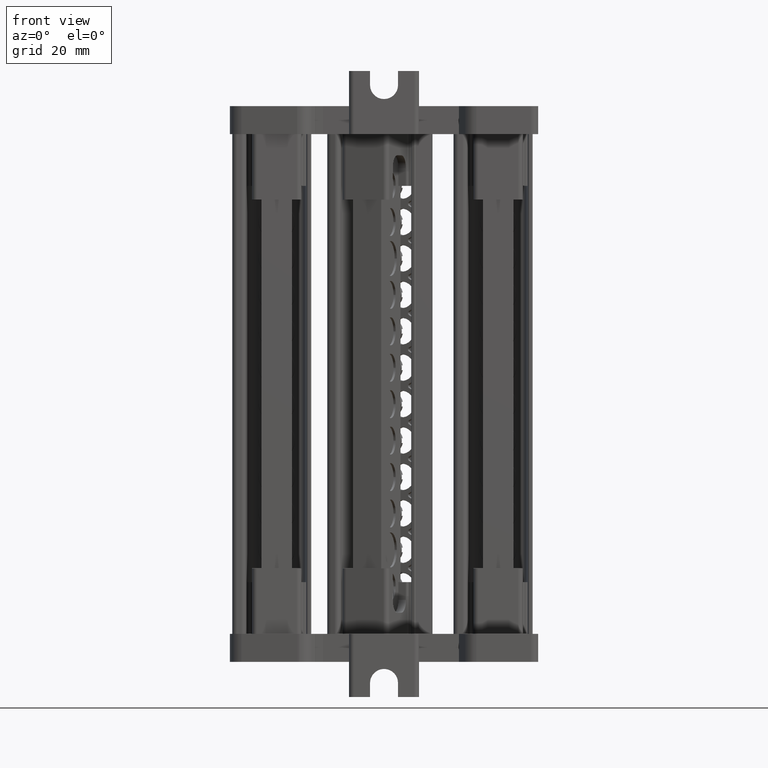
[diagram: clean part render]
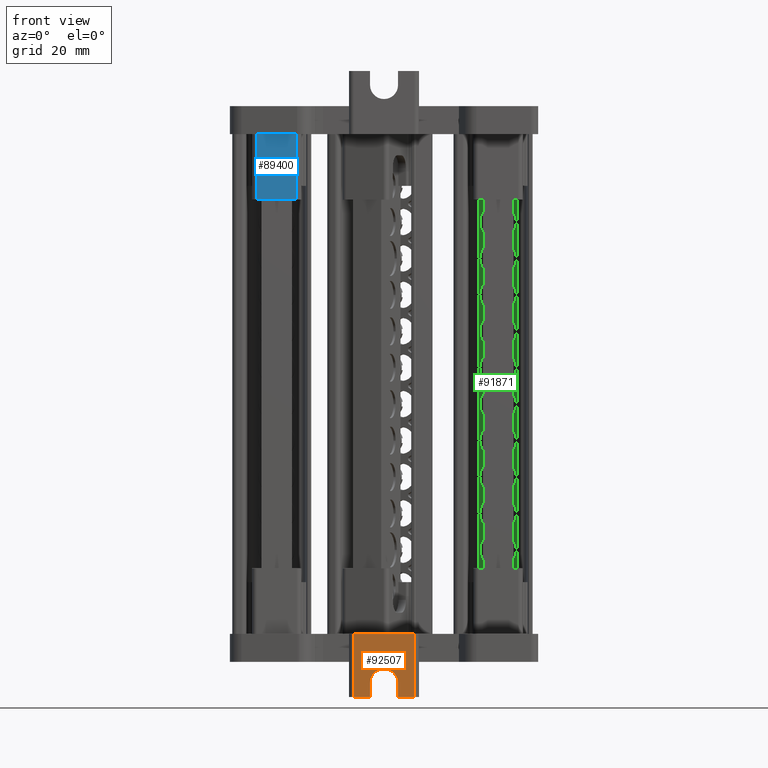
[diagram: same view with three faces highlighted in distinct colors, each labeled with its STEP entity id]
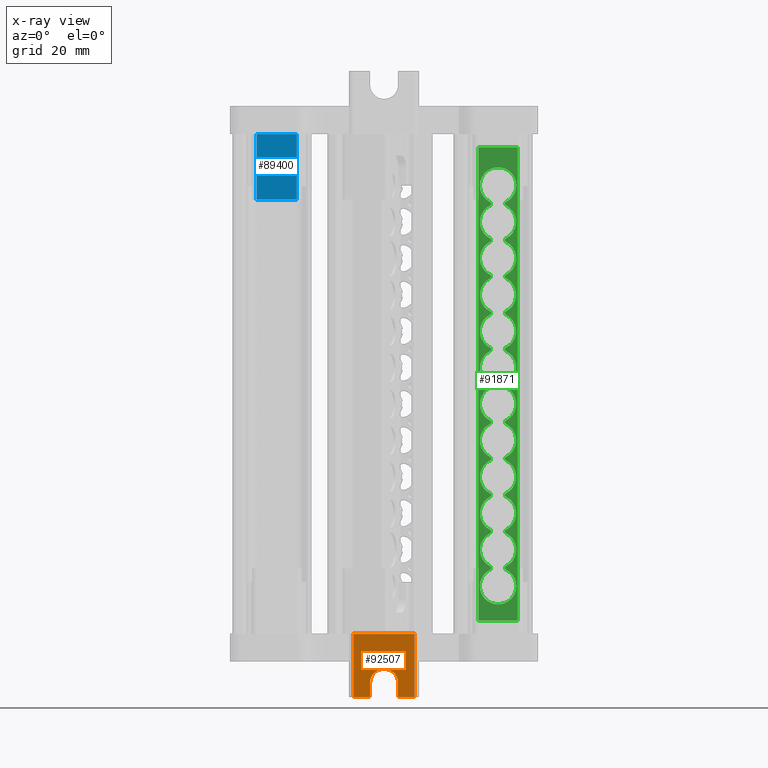
[diagram: x-ray of the same camera — body ghosted, the three highlighted faces saturated]
A machine part, front view with three faces highlighted in distinct colors.
The next image is the same camera in x-ray (body ghosted, the three faces saturated) — at least one of them is partly hidden behind the body in this view.
Their STEP definitions:

[orange] entity #92507 — the highlighted planar face has unit normal (0, -1, -0).
#1640 = ORIENTED_EDGE ( 'NONE', *, *, #4927, .T. ) ;
#1646 = ORIENTED_EDGE ( 'NONE', *, *, #11533, .F. ) ;
#1656 = ORIENTED_EDGE ( 'NONE', *, *, #11529, .F. ) ;
#1691 = ORIENTED_EDGE ( 'NONE', *, *, #2683, .T. ) ;
#1696 = ORIENTED_EDGE ( 'NONE', *, *, #11507, .T. ) ;
#1712 = ORIENTED_EDGE ( 'NONE', *, *, #11512, .F. ) ;
#1725 = ORIENTED_EDGE ( 'NONE', *, *, #11506, .F. ) ;
#1743 = ORIENTED_EDGE ( 'NONE', *, *, #11525, .F. ) ;
#2683 = EDGE_CURVE ( 'NONE', #45308, #45068, #9912, .T. ) ;
#4927 = EDGE_CURVE ( 'NONE', #45068, #45111, #84789, .T. ) ;
#7908 = VECTOR ( 'NONE', #9883, 1000.000000000000000 ) ;
#9397 = EDGE_LOOP ( 'NONE', ( #1656, #1646, #1691, #1640, #1712, #1725, #1743, #1696 ) ) ;
#9839 = CARTESIAN_POINT ( 'NONE',  ( -300.8933535342819700, 187.0684934825438900, -93.71907355829678500 ) ) ;
#9883 = DIRECTION ( 'NONE',  ( -0.0000000000000000000, -6.891400851611630800E-015, 1.000000000000000000 ) ) ;
#9912 = LINE ( 'NONE', #9839, #7908 ) ;
#11506 = EDGE_CURVE ( 'NONE', #45312, #45418, #37880, .T. ) ;
#11507 = EDGE_CURVE ( 'NONE', #45299, #45451, #37881, .T. ) ;
#11512 = EDGE_CURVE ( 'NONE', #45418, #45111, #37877, .T. ) ;
#11525 = EDGE_CURVE ( 'NONE', #45299, #45312, #37908, .T. ) ;
#11529 = EDGE_CURVE ( 'NONE', #45386, #45451, #37909, .T. ) ;
#11533 = EDGE_CURVE ( 'NONE', #45308, #45386, #37935, .T. ) ;
#24833 = DIRECTION ( 'NONE',  ( 0.0000000000000000000, 9.251080483043822500E-015, -1.000000000000000000 ) ) ;
#24857 = CARTESIAN_POINT ( 'NONE',  ( -297.8931012214303600, 187.0684934825434000, -17.18794990842835400 ) ) ;
#24861 = DIRECTION ( 'NONE',  ( -2.944406934524380500E-029, 1.000000000000000000, 6.891400851611630800E-015 ) ) ;
#37865 = CARTESIAN_POINT ( 'NONE',  ( -291.3963463213656800, 187.0684934825432900, -6.687066813447911400 ) ) ;
#37867 = CARTESIAN_POINT ( 'NONE',  ( -294.8928489085786900, 187.0684934825434000, -21.68832837770599300 ) ) ;
#37873 = DIRECTION ( 'NONE',  ( 1.233581138472394100E-014, 0.0000000000000000000, 1.000000000000000000 ) ) ;
#37876 = CARTESIAN_POINT ( 'NONE',  ( -290.3962622170823200, 187.0684934825434000, -20.18820222128017900 ) ) ;
#37877 = LINE ( 'NONE', #37867, #39702 ) ;
#37880 = LINE ( 'NONE', #37876, #39717 ) ;
#37881 = LINE ( 'NONE', #37865, #39705 ) ;
#37882 = DIRECTION ( 'NONE',  ( -1.000000000000000000, 0.0000000000000000000, -0.0000000000000000000 ) ) ;
#37885 = DIRECTION ( 'NONE',  ( -1.000000000000000000, -2.944406934524380500E-029, -2.029108845607250600E-043 ) ) ;
#37908 = LINE ( 'NONE', #37950, #39823 ) ;
#37909 = LINE ( 'NONE', #37918, #39788 ) ;
#37916 = CARTESIAN_POINT ( 'NONE',  ( -300.8933535342819700, 187.0684934825434000, -20.18820222128017900 ) ) ;
#37918 = CARTESIAN_POINT ( 'NONE',  ( -304.3898549441998400, 187.0684934825439100, -93.71907355829678500 ) ) ;
#37935 = LINE ( 'NONE', #37916, #39814 ) ;
#37936 = DIRECTION ( 'NONE',  ( -3.956299522033005100E-015, -6.891400851611630800E-015, 1.000000000000000000 ) ) ;
#37944 = DIRECTION ( 'NONE',  ( 3.956299522033005100E-015, 6.891400851611630800E-015, -1.000000000000000000 ) ) ;
#37950 = CARTESIAN_POINT ( 'NONE',  ( -291.3963463213655100, 187.0684934825439100, -93.71907355829678500 ) ) ;
#37977 = DIRECTION ( 'NONE',  ( -1.000000000000000000, 0.0000000000000000000, -0.0000000000000000000 ) ) ;
#39702 = VECTOR ( 'NONE', #37873, 1000.000000000000000 ) ;
#39705 = VECTOR ( 'NONE', #37885, 1000.000000000000000 ) ;
#39717 = VECTOR ( 'NONE', #37882, 1000.000000000000000 ) ;
#39788 = VECTOR ( 'NONE', #37936, 1000.000000000000000 ) ;
#39814 = VECTOR ( 'NONE', #37977, 1000.000000000000000 ) ;
#39823 = VECTOR ( 'NONE', #37944, 1000.000000000000000 ) ;
#45068 = VERTEX_POINT ( 'NONE', #66403 ) ;
#45111 = VERTEX_POINT ( 'NONE', #66418 ) ;
#45299 = VERTEX_POINT ( 'NONE', #66612 ) ;
#45308 = VERTEX_POINT ( 'NONE', #66647 ) ;
#45312 = VERTEX_POINT ( 'NONE', #66691 ) ;
#45386 = VERTEX_POINT ( 'NONE', #66763 ) ;
#45418 = VERTEX_POINT ( 'NONE', #66743 ) ;
#45451 = VERTEX_POINT ( 'NONE', #66787 ) ;
#64942 = AXIS2_PLACEMENT_3D ( 'NONE', #81609, #81599, #81634 ) ;
#66403 = CARTESIAN_POINT ( 'NONE',  ( -300.8933535342819700, 187.0684934825434000, -17.18794990842834000 ) ) ;
#66418 = CARTESIAN_POINT ( 'NONE',  ( -294.8928489085786300, 187.0684934825434000, -17.18794990842841800 ) ) ;
#66612 = CARTESIAN_POINT ( 'NONE',  ( -291.3963463213659100, 187.0684934825432900, -6.687066813447887400 ) ) ;
#66647 = CARTESIAN_POINT ( 'NONE',  ( -300.8933535342819700, 187.0684934825434000, -20.18820222128017500 ) ) ;
#66691 = CARTESIAN_POINT ( 'NONE',  ( -291.3963463213659100, 187.0684934825434000, -20.18820222128015400 ) ) ;
#66743 = CARTESIAN_POINT ( 'NONE',  ( -294.8928489085786900, 187.0684934825434000, -20.18820222128017500 ) ) ;
#66763 = CARTESIAN_POINT ( 'NONE',  ( -304.3898549442001200, 187.0684934825434000, -20.18820222128016400 ) ) ;
#66787 = CARTESIAN_POINT ( 'NONE',  ( -304.3898549442001800, 187.0684934825432900, -6.687066813447925600 ) ) ;
#81578 = FACE_OUTER_BOUND ( 'NONE', #9397, .T. ) ;
#81599 = DIRECTION ( 'NONE',  ( 2.944406934524380500E-029, -1.000000000000000000, -6.891400851611630800E-015 ) ) ;
#81609 = CARTESIAN_POINT ( 'NONE',  ( -291.3963463213656800, 187.0684934825438900, -93.71907355829678500 ) ) ;
#81619 = PLANE ( 'NONE',  #64942 ) ;
#81634 = DIRECTION ( 'NONE',  ( 0.0000000000000000000, 6.891400851611630800E-015, -1.000000000000000000 ) ) ;
#84789 = CIRCLE ( 'NONE', #84826, 3.000252312851642100 ) ;
#84826 = AXIS2_PLACEMENT_3D ( 'NONE', #24857, #24861, #24833 ) ;
#92507 = ADVANCED_FACE ( 'NONE', ( #81578 ), #81619, .T. ) ;

[blue] entity #89400 — the highlighted planar face has unit normal (0, -1, -0).
#866 = EDGE_LOOP ( 'NONE', ( #87305, #87270, #87526, #87417 ) ) ;
#33244 = VERTEX_POINT ( 'NONE', #63793 ) ;
#33269 = VERTEX_POINT ( 'NONE', #63853 ) ;
#33284 = VERTEX_POINT ( 'NONE', #63808 ) ;
#33338 = VERTEX_POINT ( 'NONE', #67394 ) ;
#49927 = CARTESIAN_POINT ( 'NONE',  ( -352.6661138515453300, 190.8764846886264200, 100.3119239351448600 ) ) ;
#49939 = FACE_OUTER_BOUND ( 'NONE', #866, .T. ) ;
#49999 = DIRECTION ( 'NONE',  ( 1.872836974742015000E-028, -1.000000000000000000, -7.828931295266021800E-015 ) ) ;
#50009 = PLANE ( 'NONE',  #52344 ) ;
#50021 = DIRECTION ( 'NONE',  ( 0.0000000000000000000, 7.828931295266021800E-015, -1.000000000000000000 ) ) ;
#52344 = AXIS2_PLACEMENT_3D ( 'NONE', #49927, #49999, #50021 ) ;
#62659 = EDGE_CURVE ( 'NONE', #33269, #33284, #73211, .T. ) ;
#62760 = EDGE_CURVE ( 'NONE', #33338, #33269, #73284, .T. ) ;
#62895 = EDGE_CURVE ( 'NONE', #33244, #33338, #73438, .T. ) ;
#63793 = CARTESIAN_POINT ( 'NONE',  ( -325.1638009837390700, 190.8764846886264200, 100.3119239351458400 ) ) ;
#63808 = CARTESIAN_POINT ( 'NONE',  ( -316.5542769467807000, 190.8764846886264200, 100.3119239351457800 ) ) ;
#63853 = CARTESIAN_POINT ( 'NONE',  ( -316.5542769467807000, 190.8764846886265300, 86.29336666203809600 ) ) ;
#65083 = EDGE_CURVE ( 'NONE', #33284, #33244, #83917, .T. ) ;
#67394 = CARTESIAN_POINT ( 'NONE',  ( -325.1638009837390700, 190.8764846886265300, 86.29336666203809600 ) ) ;
#69912 = VECTOR ( 'NONE', #73275, 1000.000000000000000 ) ;
#69922 = VECTOR ( 'NONE', #73143, 1000.000000000000000 ) ;
#69972 = VECTOR ( 'NONE', #73431, 1000.000000000000000 ) ;
#73143 = DIRECTION ( 'NONE',  ( -0.0000000000000000000, -7.828931295266021800E-015, 1.000000000000000000 ) ) ;
#73160 = CARTESIAN_POINT ( 'NONE',  ( -316.5542769467807000, 190.8764846886264200, 100.3119239351448600 ) ) ;
#73211 = LINE ( 'NONE', #73160, #69922 ) ;
#73275 = DIRECTION ( 'NONE',  ( 1.000000000000000000, 1.872836974742015000E-028, 1.466231200248910200E-042 ) ) ;
#73284 = LINE ( 'NONE', #73286, #69912 ) ;
#73286 = CARTESIAN_POINT ( 'NONE',  ( -352.6661138515453300, 190.8764846886265300, 86.29336666203809600 ) ) ;
#73417 = CARTESIAN_POINT ( 'NONE',  ( -325.1638009837390700, 190.8764846886264200, 100.3119239351448600 ) ) ;
#73431 = DIRECTION ( 'NONE',  ( 0.0000000000000000000, 7.828931295266021800E-015, -1.000000000000000000 ) ) ;
#73438 = LINE ( 'NONE', #73417, #69972 ) ;
#81885 = VECTOR ( 'NONE', #83941, 1000.000000000000000 ) ;
#83917 = LINE ( 'NONE', #83921, #81885 ) ;
#83921 = CARTESIAN_POINT ( 'NONE',  ( -352.6661138515453300, 190.8764846886264200, 100.3119239351458400 ) ) ;
#83941 = DIRECTION ( 'NONE',  ( -1.000000000000000000, -1.872836974742015000E-028, -1.466231200248910200E-042 ) ) ;
#87270 = ORIENTED_EDGE ( 'NONE', *, *, #62895, .T. ) ;
#87305 = ORIENTED_EDGE ( 'NONE', *, *, #65083, .T. ) ;
#87417 = ORIENTED_EDGE ( 'NONE', *, *, #62659, .T. ) ;
#87526 = ORIENTED_EDGE ( 'NONE', *, *, #62760, .T. ) ;
#89400 = ADVANCED_FACE ( 'NONE', ( #49939 ), #50009, .T. ) ;

[green] entity #91871 — the highlighted planar face has unit normal (-0, -1, 0).
#4338 = EDGE_CURVE ( 'NONE', #23587, #23584, #19788, .T. ) ;
#4367 = EDGE_CURVE ( 'NONE', #23562, #23537, #19899, .T. ) ;
#19788 = LINE ( 'NONE', #19843, #60422 ) ;
#19808 = DIRECTION ( 'NONE',  ( 3.062990901166283400E-013, 1.604972357196100700E-014, 1.000000000000000000 ) ) ;
#19843 = CARTESIAN_POINT ( 'NONE',  ( -269.2679641194932900, 231.1222019982576800, 99.38740414880034300 ) ) ;
#19899 = LINE ( 'NONE', #19926, #60434 ) ;
#19905 = DIRECTION ( 'NONE',  ( -3.062990901166283400E-013, -1.604972357196100700E-014, -1.000000000000000000 ) ) ;
#19926 = CARTESIAN_POINT ( 'NONE',  ( -277.6911781344949800, 231.1222019982577900, 99.38740414880290100 ) ) ;
#23449 = VERTEX_POINT ( 'NONE', #48115 ) ;
#23455 = VERTEX_POINT ( 'NONE', #48082 ) ;
#23458 = VERTEX_POINT ( 'NONE', #48128 ) ;
#23461 = VERTEX_POINT ( 'NONE', #48138 ) ;
#23462 = VERTEX_POINT ( 'NONE', #48132 ) ;
#23464 = VERTEX_POINT ( 'NONE', #48139 ) ;
#23466 = VERTEX_POINT ( 'NONE', #48079 ) ;
#23469 = VERTEX_POINT ( 'NONE', #48085 ) ;
#23471 = VERTEX_POINT ( 'NONE', #48083 ) ;
#23495 = VERTEX_POINT ( 'NONE', #48165 ) ;
#23496 = VERTEX_POINT ( 'NONE', #48155 ) ;
#23498 = VERTEX_POINT ( 'NONE', #48176 ) ;
#23501 = VERTEX_POINT ( 'NONE', #48175 ) ;
#23507 = VERTEX_POINT ( 'NONE', #48178 ) ;
#23511 = VERTEX_POINT ( 'NONE', #48163 ) ;
#23512 = VERTEX_POINT ( 'NONE', #48191 ) ;
#23514 = VERTEX_POINT ( 'NONE', #48180 ) ;
#23515 = VERTEX_POINT ( 'NONE', #48200 ) ;
#23516 = VERTEX_POINT ( 'NONE', #48192 ) ;
#23524 = VERTEX_POINT ( 'NONE', #48187 ) ;
#23525 = VERTEX_POINT ( 'NONE', #48182 ) ;
#23527 = VERTEX_POINT ( 'NONE', #48173 ) ;
#23533 = VERTEX_POINT ( 'NONE', #48164 ) ;
#23535 = VERTEX_POINT ( 'NONE', #48188 ) ;
#23537 = VERTEX_POINT ( 'NONE', #48194 ) ;
#23539 = VERTEX_POINT ( 'NONE', #48199 ) ;
#23544 = VERTEX_POINT ( 'NONE', #48148 ) ;
#23545 = VERTEX_POINT ( 'NONE', #48146 ) ;
#23552 = VERTEX_POINT ( 'NONE', #48152 ) ;
#23558 = VERTEX_POINT ( 'NONE', #48265 ) ;
#23562 = VERTEX_POINT ( 'NONE', #48231 ) ;
#23579 = VERTEX_POINT ( 'NONE', #48229 ) ;
#23583 = VERTEX_POINT ( 'NONE', #48216 ) ;
#23584 = VERTEX_POINT ( 'NONE', #48254 ) ;
#23587 = VERTEX_POINT ( 'NONE', #48230 ) ;
#23612 = VERTEX_POINT ( 'NONE', #48251 ) ;
#28774 = EDGE_CURVE ( 'NONE', #32958, #33168, #44888, .T. ) ;
#28783 = EDGE_CURVE ( 'NONE', #33006, #33022, #45082, .T. ) ;
#28788 = EDGE_CURVE ( 'NONE', #33112, #32964, #45050, .T. ) ;
#28798 = EDGE_CURVE ( 'NONE', #33171, #32912, #45041, .T. ) ;
#28812 = EDGE_CURVE ( 'NONE', #32950, #32948, #45035, .T. ) ;
#28868 = EDGE_CURVE ( 'NONE', #33011, #32933, #45205, .T. ) ;
#28869 = EDGE_CURVE ( 'NONE', #32964, #32934, #45231, .T. ) ;
#28879 = EDGE_CURVE ( 'NONE', #32983, #33024, #44392, .T. ) ;
#28881 = EDGE_CURVE ( 'NONE', #33129, #32953, #44523, .T. ) ;
#28897 = EDGE_CURVE ( 'NONE', #33152, #33065, #45216, .T. ) ;
#28909 = EDGE_CURVE ( 'NONE', #33074, #33117, #55857, .T. ) ;
#28912 = EDGE_CURVE ( 'NONE', #33079, #32983, #55856, .T. ) ;
#28924 = EDGE_CURVE ( 'NONE', #33013, #33018, #55836, .T. ) ;
#28929 = EDGE_CURVE ( 'NONE', #33117, #33040, #55851, .T. ) ;
#28932 = EDGE_CURVE ( 'NONE', #33180, #32967, #55870, .T. ) ;
#28935 = EDGE_CURVE ( 'NONE', #32967, #32971, #55886, .T. ) ;
#28944 = EDGE_CURVE ( 'NONE', #33065, #32907, #55869, .T. ) ;
#28989 = EDGE_CURVE ( 'NONE', #33018, #33086, #55888, .T. ) ;
#32907 = VERTEX_POINT ( 'NONE', #63247 ) ;
#32912 = VERTEX_POINT ( 'NONE', #63265 ) ;
#32933 = VERTEX_POINT ( 'NONE', #63385 ) ;
#32934 = VERTEX_POINT ( 'NONE', #63417 ) ;
#32948 = VERTEX_POINT ( 'NONE', #63377 ) ;
#32950 = VERTEX_POINT ( 'NONE', #63361 ) ;
#32953 = VERTEX_POINT ( 'NONE', #63440 ) ;
#32958 = VERTEX_POINT ( 'NONE', #63395 ) ;
#32964 = VERTEX_POINT ( 'NONE', #63342 ) ;
#32967 = VERTEX_POINT ( 'NONE', #63447 ) ;
#32971 = VERTEX_POINT ( 'NONE', #63403 ) ;
#32983 = VERTEX_POINT ( 'NONE', #63370 ) ;
#33006 = VERTEX_POINT ( 'NONE', #63424 ) ;
#33011 = VERTEX_POINT ( 'NONE', #63438 ) ;
#33013 = VERTEX_POINT ( 'NONE', #63443 ) ;
#33018 = VERTEX_POINT ( 'NONE', #63340 ) ;
#33022 = VERTEX_POINT ( 'NONE', #63368 ) ;
#33024 = VERTEX_POINT ( 'NONE', #63490 ) ;
#33040 = VERTEX_POINT ( 'NONE', #63507 ) ;
#33065 = VERTEX_POINT ( 'NONE', #63514 ) ;
#33074 = VERTEX_POINT ( 'NONE', #63523 ) ;
#33079 = VERTEX_POINT ( 'NONE', #63539 ) ;
#33086 = VERTEX_POINT ( 'NONE', #63480 ) ;
#33112 = VERTEX_POINT ( 'NONE', #63655 ) ;
#33117 = VERTEX_POINT ( 'NONE', #63697 ) ;
#33129 = VERTEX_POINT ( 'NONE', #63740 ) ;
#33152 = VERTEX_POINT ( 'NONE', #63642 ) ;
#33168 = VERTEX_POINT ( 'NONE', #63694 ) ;
#33171 = VERTEX_POINT ( 'NONE', #63650 ) ;
#33180 = VERTEX_POINT ( 'NONE', #63743 ) ;
#34097 = EDGE_LOOP ( 'NONE', ( #76657, #76684, #76707, #76622, #76633, #76635, #76624, #76649, #76701, #76682, #76664, #76629, #76729, #76712, #76711, #76651, #76683, #76628, #76739, #76631, #76647, #76634, #76652, #76689, #76744, #76656, #76675, #76700, #76699, #76665, #76669, #76736, #76745, #76703, #76640, #76708, #76773, #76768, #76771, #76743, #76765, #76738, #76754, #76690, #76749, #76759, #76767, #76750, #76780, #76704, #76807, #76734, #76732, #76752, #76753, #76731, #76694, #76756, #76783, #76709, #76686, #76730 ) ) ;
#34179 = EDGE_LOOP ( 'NONE', ( #76644, #76661, #76713, #76627 ) ) ;
#44034 = AXIS2_PLACEMENT_3D ( 'NONE', #54132, #54143, #54194 ) ;
#44392 = CIRCLE ( 'NONE', #44396, 3.900929488323545700 ) ;
#44396 = AXIS2_PLACEMENT_3D ( 'NONE', #53987, #53960, #53937 ) ;
#44523 = CIRCLE ( 'NONE', #44590, 0.4474227843799250000 ) ;
#44590 = AXIS2_PLACEMENT_3D ( 'NONE', #53984, #53957, #53978 ) ;
#44888 = CIRCLE ( 'NONE', #45112, 3.900929488318993800 ) ;
#45032 = AXIS2_PLACEMENT_3D ( 'NONE', #55289, #55286, #55302 ) ;
#45035 = CIRCLE ( 'NONE', #45067, 3.900929488318327600 ) ;
#45041 = CIRCLE ( 'NONE', #45087, 3.900929488317217400 ) ;
#45050 = CIRCLE ( 'NONE', #45140, 0.4474227843783706900 ) ;
#45067 = AXIS2_PLACEMENT_3D ( 'NONE', #53586, #53601, #53598 ) ;
#45082 = CIRCLE ( 'NONE', #45032, 3.900929488317661500 ) ;
#45087 = AXIS2_PLACEMENT_3D ( 'NONE', #55462, #55485, #55456 ) ;
#45112 = AXIS2_PLACEMENT_3D ( 'NONE', #55298, #55277, #55318 ) ;
#45140 = AXIS2_PLACEMENT_3D ( 'NONE', #55449, #55432, #55443 ) ;
#45205 = CIRCLE ( 'NONE', #45281, 3.900929488319437900 ) ;
#45216 = CIRCLE ( 'NONE', #44034, 0.4474227843743738800 ) ;
#45231 = CIRCLE ( 'NONE', #45268, 3.900929488322491000 ) ;
#45268 = AXIS2_PLACEMENT_3D ( 'NONE', #53814, #53847, #53820 ) ;
#45281 = AXIS2_PLACEMENT_3D ( 'NONE', #53893, #53843, #53835 ) ;
#48079 = CARTESIAN_POINT ( 'NONE',  ( -271.7513737452754900, 231.1222019982607800, 30.41225132912623500 ) ) ;
#48082 = CARTESIAN_POINT ( 'NONE',  ( -271.7513737452761700, 231.1222019982324400, 22.61520587465248900 ) ) ;
#48083 = CARTESIAN_POINT ( 'NONE',  ( -271.7513729000103800, 231.1222019982324400, 23.41748162974975500 ) ) ;
#48085 = CARTESIAN_POINT ( 'NONE',  ( -271.7513737452740700, 231.1222019981755700, 38.20929678360303700 ) ) ;
#48115 = CARTESIAN_POINT ( 'NONE',  ( -271.7513737452736700, 231.1222019982608300, 31.21452666662854700 ) ) ;
#48128 = CARTESIAN_POINT ( 'NONE',  ( -271.7513737452688900, 231.1222019982608600, 53.80338769256346900 ) ) ;
#48132 = CARTESIAN_POINT ( 'NONE',  ( -271.7513737452712800, 231.1222019982324100, 46.80861757558502500 ) ) ;
#48138 = CARTESIAN_POINT ( 'NONE',  ( -271.7513737452699700, 231.1222019982039900, 46.00634223808131700 ) ) ;
#48139 = CARTESIAN_POINT ( 'NONE',  ( -271.7513728973004800, 231.1222019982324400, 7.823390722129300200 ) ) ;
#48146 = CARTESIAN_POINT ( 'NONE',  ( -271.7513737452618400, 231.1222019981471500, 84.99156951046737200 ) ) ;
#48148 = CARTESIAN_POINT ( 'NONE',  ( -271.7513737452598000, 231.1222019981755700, 85.79384484797182600 ) ) ;
#48152 = CARTESIAN_POINT ( 'NONE',  ( -271.7513745918923300, 231.1222019982323600, 54.60566261178534100 ) ) ;
#48155 = CARTESIAN_POINT ( 'NONE',  ( -271.7513737452774800, 231.1222019982608100, 14.81816042017136000 ) ) ;
#48163 = CARTESIAN_POINT ( 'NONE',  ( -275.2071217832270800, 231.1222019982607200, 46.00634223808013000 ) ) ;
#48164 = CARTESIAN_POINT ( 'NONE',  ( -271.7513737452613900, 231.1222019982040200, 69.39747860151892700 ) ) ;
#48165 = CARTESIAN_POINT ( 'NONE',  ( -275.2071217832365200, 231.1222019982039900, 14.81816042016916100 ) ) ;
#48173 = CARTESIAN_POINT ( 'NONE',  ( -275.2071217832303800, 231.1222019981754800, 30.41225132912507000 ) ) ;
#48175 = CARTESIAN_POINT ( 'NONE',  ( -271.7513745932508300, 231.1222019982323600, 70.19975352007112700 ) ) ;
#48176 = CARTESIAN_POINT ( 'NONE',  ( -275.2071226306360900, 231.1222019982324100, 53.80338727390586200 ) ) ;
#48178 = CARTESIAN_POINT ( 'NONE',  ( -275.2071226304353200, 231.1222019982324100, 69.39747818296318400 ) ) ;
#48180 = CARTESIAN_POINT ( 'NONE',  ( -275.2071209333011600, 231.1222019982324100, 22.61520629455834800 ) ) ;
#48182 = CARTESIAN_POINT ( 'NONE',  ( -275.2071209358239800, 231.1222019982324100, 38.20929720226662600 ) ) ;
#48187 = CARTESIAN_POINT ( 'NONE',  ( -271.7513737452609900, 231.1222019982324100, 77.99679939349202600 ) ) ;
#48188 = CARTESIAN_POINT ( 'NONE',  ( -271.7513737452641200, 231.1222019982324100, 62.40270848452991000 ) ) ;
#48191 = CARTESIAN_POINT ( 'NONE',  ( -271.7513737452737800, 231.1222019981471500, 39.01157212110926100 ) ) ;
#48192 = CARTESIAN_POINT ( 'NONE',  ( -271.7513737452766800, 231.1222019982608600, 15.62043575766496100 ) ) ;
#48194 = CARTESIAN_POINT ( 'NONE',  ( -277.6911781345265800, 231.1222019982561200, -3.858290408473854500 ) ) ;
#48199 = CARTESIAN_POINT ( 'NONE',  ( -275.2071217832242400, 231.1222019982352500, 61.60043314704501000 ) ) ;
#48200 = CARTESIAN_POINT ( 'NONE',  ( -275.2071217832407800, 231.1222019982009800, 7.021114965691639400 ) ) ;
#48216 = CARTESIAN_POINT ( 'NONE',  ( -271.7513737452599700, 231.1222019982039300, 77.19452405600240800 ) ) ;
#48229 = CARTESIAN_POINT ( 'NONE',  ( -271.7513737452631500, 231.1222019982039300, 61.60043314704176300 ) ) ;
#48230 = CARTESIAN_POINT ( 'NONE',  ( -269.2679641195248900, 231.1222019982560000, -3.858290408473854500 ) ) ;
#48231 = CARTESIAN_POINT ( 'NONE',  ( -277.6911781344955400, 231.1222019982577900, 97.48314753017254500 ) ) ;
#48251 = CARTESIAN_POINT ( 'NONE',  ( -275.2071217832204300, 231.1222019982323000, 77.19452405600390000 ) ) ;
#48254 = CARTESIAN_POINT ( 'NONE',  ( -269.2679641195015800, 231.1222019982576500, 97.48314753017173500 ) ) ;
#48265 = CARTESIAN_POINT ( 'NONE',  ( -275.2071209360127600, 231.1222019982324100, 84.99156992904069300 ) ) ;
#51763 = CIRCLE ( 'NONE', #51805, 3.900929488316551300 ) ;
#51775 = AXIS2_PLACEMENT_3D ( 'NONE', #55018, #54997, #54959 ) ;
#51782 = AXIS2_PLACEMENT_3D ( 'NONE', #54846, #54759, #54807 ) ;
#51793 = AXIS2_PLACEMENT_3D ( 'NONE', #54934, #54917, #54859 ) ;
#51796 = CIRCLE ( 'NONE', #51775, 0.4474227843844769100 ) ;
#51799 = CIRCLE ( 'NONE', #51802, 0.4474227843737805800 ) ;
#51802 = AXIS2_PLACEMENT_3D ( 'NONE', #54920, #54930, #55026 ) ;
#51805 = AXIS2_PLACEMENT_3D ( 'NONE', #54949, #54969, #54962 ) ;
#51808 = CIRCLE ( 'NONE', #51782, 3.900929488314275300 ) ;
#51809 = CIRCLE ( 'NONE', #51813, 0.4474227843664913000 ) ;
#51811 = CIRCLE ( 'NONE', #51793, 0.4474227843798139800 ) ;
#51813 = AXIS2_PLACEMENT_3D ( 'NONE', #54966, #54956, #54957 ) ;
#51815 = AXIS2_PLACEMENT_3D ( 'NONE', #55149, #55209, #55151 ) ;
#51816 = CIRCLE ( 'NONE', #51839, 3.900929488315274500 ) ;
#51819 = AXIS2_PLACEMENT_3D ( 'NONE', #55257, #55228, #55313 ) ;
#51823 = AXIS2_PLACEMENT_3D ( 'NONE', #55251, #55240, #55260 ) ;
#51824 = CIRCLE ( 'NONE', #51815, 3.900929488313664700 ) ;
#51825 = CIRCLE ( 'NONE', #51847, 0.4474227843738569600 ) ;
#51826 = AXIS2_PLACEMENT_3D ( 'NONE', #55121, #55099, #55119 ) ;
#51830 = CIRCLE ( 'NONE', #51867, 3.900929488313886800 ) ;
#51833 = AXIS2_PLACEMENT_3D ( 'NONE', #59503, #59485, #59488 ) ;
#51839 = AXIS2_PLACEMENT_3D ( 'NONE', #55328, #55358, #55392 ) ;
#51842 = CIRCLE ( 'NONE', #51862, 0.4474227843795988700 ) ;
#51843 = CIRCLE ( 'NONE', #51851, 0.4474227843683587500 ) ;
#51846 = CIRCLE ( 'NONE', #51860, 0.4474227843775449600 ) ;
#51847 = AXIS2_PLACEMENT_3D ( 'NONE', #55088, #55061, #55049 ) ;
#51851 = AXIS2_PLACEMENT_3D ( 'NONE', #55373, #55376, #55378 ) ;
#51853 = CIRCLE ( 'NONE', #51823, 3.900929488316717800 ) ;
#51859 = CIRCLE ( 'NONE', #51873, 3.900929488313165100 ) ;
#51860 = AXIS2_PLACEMENT_3D ( 'NONE', #55412, #55343, #55406 ) ;
#51861 = CIRCLE ( 'NONE', #51826, 3.900929488311097400 ) ;
#51862 = AXIS2_PLACEMENT_3D ( 'NONE', #55403, #55408, #55324 ) ;
#51863 = CIRCLE ( 'NONE', #51833, 0.4474227843775380200 ) ;
#51865 = CIRCLE ( 'NONE', #51900, 3.900929488317661500 ) ;
#51867 = AXIS2_PLACEMENT_3D ( 'NONE', #55086, #55059, #55112 ) ;
#51870 = CIRCLE ( 'NONE', #51819, 0.4474227843763722800 ) ;
#51873 = AXIS2_PLACEMENT_3D ( 'NONE', #55405, #55394, #55356 ) ;
#51876 = AXIS2_PLACEMENT_3D ( 'NONE', #59506, #59489, #59487 ) ;
#51877 = CIRCLE ( 'NONE', #51898, 0.4474227843765943300 ) ;
#51881 = CIRCLE ( 'NONE', #51907, 0.4474227843783706900 ) ;
#51884 = CIRCLE ( 'NONE', #51876, 3.900929488322491000 ) ;
#51885 = CIRCLE ( 'NONE', #51894, 0.4474227843743738800 ) ;
#51887 = AXIS2_PLACEMENT_3D ( 'NONE', #59551, #59550, #59544 ) ;
#51888 = CIRCLE ( 'NONE', #51929, 0.4474227843751232800 ) ;
#51890 = AXIS2_PLACEMENT_3D ( 'NONE', #59605, #59626, #59607 ) ;
#51891 = CIRCLE ( 'NONE', #51895, 0.4474227843684897000 ) ;
#51894 = AXIS2_PLACEMENT_3D ( 'NONE', #59470, #59502, #59479 ) ;
#51895 = AXIS2_PLACEMENT_3D ( 'NONE', #59643, #59619, #59601 ) ;
#51898 = AXIS2_PLACEMENT_3D ( 'NONE', #59516, #59534, #59528 ) ;
#51899 = AXIS2_PLACEMENT_3D ( 'NONE', #59629, #59625, #59608 ) ;
#51900 = AXIS2_PLACEMENT_3D ( 'NONE', #59505, #59468, #59495 ) ;
#51901 = CIRCLE ( 'NONE', #51913, 0.4474227843720285400 ) ;
#51904 = CIRCLE ( 'NONE', #51917, 3.900929488318327600 ) ;
#51905 = AXIS2_PLACEMENT_3D ( 'NONE', #59580, #59577, #59558 ) ;
#51907 = AXIS2_PLACEMENT_3D ( 'NONE', #59571, #59572, #59554 ) ;
#51910 = CIRCLE ( 'NONE', #51899, 0.4474227843642014600 ) ;
#51911 = CIRCLE ( 'NONE', #51919, 3.900929488318993800 ) ;
#51912 = AXIS2_PLACEMENT_3D ( 'NONE', #59556, #59564, #59557 ) ;
#51913 = AXIS2_PLACEMENT_3D ( 'NONE', #59524, #59530, #59553 ) ;
#51914 = CIRCLE ( 'NONE', #51912, 0.4474227843774339400 ) ;
#51917 = AXIS2_PLACEMENT_3D ( 'NONE', #59596, #59559, #59561 ) ;
#51919 = AXIS2_PLACEMENT_3D ( 'NONE', #59633, #59624, #59611 ) ;
#51924 = CIRCLE ( 'NONE', #51890, 3.900929488311111200 ) ;
#51927 = AXIS2_PLACEMENT_3D ( 'NONE', #59473, #59500, #59492 ) ;
#51929 = AXIS2_PLACEMENT_3D ( 'NONE', #59589, #59582, #59584 ) ;
#51930 = CIRCLE ( 'NONE', #51887, 3.900929488315940700 ) ;
#51931 = VECTOR ( 'NONE', #59593, 1000.000000000000000 ) ;
#51932 = CIRCLE ( 'NONE', #51935, 3.900929488319437900 ) ;
#51934 = CIRCLE ( 'NONE', #51927, 3.900929488323545700 ) ;
#51935 = AXIS2_PLACEMENT_3D ( 'NONE', #59513, #59526, #59535 ) ;
#51936 = CIRCLE ( 'NONE', #51905, 0.4474227843733052900 ) ;
#51941 = CIRCLE ( 'NONE', #51955, 3.900929488315885200 ) ;
#51943 = CIRCLE ( 'NONE', #51960, 3.900929488318327600 ) ;
#51946 = CIRCLE ( 'NONE', #51998, 0.4474227843660472100 ) ;
#51954 = AXIS2_PLACEMENT_3D ( 'NONE', #59610, #59642, #59630 ) ;
#51955 = AXIS2_PLACEMENT_3D ( 'NONE', #59645, #59674, #59675 ) ;
#51956 = VECTOR ( 'NONE', #59707, 1000.000000000000000 ) ;
#51959 = CIRCLE ( 'NONE', #51964, 0.4474227843799250000 ) ;
#51960 = AXIS2_PLACEMENT_3D ( 'NONE', #59799, #59800, #59809 ) ;
#51961 = CIRCLE ( 'NONE', #52002, 0.4474227843697664600 ) ;
#51964 = AXIS2_PLACEMENT_3D ( 'NONE', #59852, #59874, #59850 ) ;
#51972 = AXIS2_PLACEMENT_3D ( 'NONE', #59849, #59857, #59876 ) ;
#51973 = CIRCLE ( 'NONE', #51975, 3.900929488310326900 ) ;
#51975 = AXIS2_PLACEMENT_3D ( 'NONE', #59858, #59878, #59889 ) ;
#51977 = CIRCLE ( 'NONE', #51997, 3.900929488307558500 ) ;
#51991 = CIRCLE ( 'NONE', #51954, 3.900929488316495800 ) ;
#51997 = AXIS2_PLACEMENT_3D ( 'NONE', #59785, #59767, #59763 ) ;
#51998 = AXIS2_PLACEMENT_3D ( 'NONE', #59798, #59843, #59842 ) ;
#52000 = CIRCLE ( 'NONE', #51972, 3.900929488317217400 ) ;
#52002 = AXIS2_PLACEMENT_3D ( 'NONE', #59659, #59685, #59689 ) ;
#53586 = CARTESIAN_POINT ( 'NONE',  ( -273.4792477642453700, 231.1222019982322400, 58.10304808855125500 ) ) ;
#53598 = DIRECTION ( 'NONE',  ( -1.000000000000000000, 2.134535553545281800E-014, 0.0000000000000000000 ) ) ;
#53601 = DIRECTION ( 'NONE',  ( 2.134535553545282100E-014, 1.000000000000000000, -1.067267776772643000E-014 ) ) ;
#53814 = CARTESIAN_POINT ( 'NONE',  ( -273.4792477642430400, 231.1222019982323000, 65.90009354302952700 ) ) ;
#53820 = DIRECTION ( 'NONE',  ( -1.000000000000000000, 3.557559255905006300E-014, 0.0000000000000000000 ) ) ;
#53835 = DIRECTION ( 'NONE',  ( -1.000000000000000000, 2.846047404726232500E-014, 0.0000000000000000000 ) ) ;
#53843 = DIRECTION ( 'NONE',  ( 2.846047404726232500E-014, 1.000000000000000000, -1.423023702363116300E-014 ) ) ;
#53847 = DIRECTION ( 'NONE',  ( 3.201803330321842900E-014, 1.000000000000000000, -1.067267776773947300E-014 ) ) ;
#53893 = CARTESIAN_POINT ( 'NONE',  ( -273.4792477642407100, 231.1222019982890600, 73.69713899750779300 ) ) ;
#53937 = DIRECTION ( 'NONE',  ( -1.000000000000000000, 3.557559255904043900E-014, 0.0000000000000000000 ) ) ;
#53957 = DIRECTION ( 'NONE',  ( -8.329827922824425200E-014, -1.000000000000000000, -2.776609307608144200E-014 ) ) ;
#53960 = DIRECTION ( 'NONE',  ( 3.201803330316100600E-014, 1.000000000000000000, -1.067267776772033600E-014 ) ) ;
#53978 = DIRECTION ( 'NONE',  ( 1.000000000000000000, -6.203433661541142400E-014, 0.0000000000000000000 ) ) ;
#53984 = CARTESIAN_POINT ( 'NONE',  ( -275.4053028082836400, 231.1222019981187800, 7.422252634442656000 ) ) ;
#53987 = CARTESIAN_POINT ( 'NONE',  ( -273.4792477642360500, 231.1222019982892600, 89.29122990646435200 ) ) ;
#54132 = CARTESIAN_POINT ( 'NONE',  ( -275.4053028082766400, 231.1222019981756300, 30.81338899787739600 ) ) ;
#54143 = DIRECTION ( 'NONE',  ( -5.553218615132383200E-014, -1.000000000000000000, 5.553218615132306200E-014 ) ) ;
#54194 = DIRECTION ( 'NONE',  ( 1.000000000000000000, -6.203433661618107400E-014, 0.0000000000000000000 ) ) ;
#54236 = DIRECTION ( 'NONE',  ( -1.000000000000000000, 2.134535553546952300E-014, 0.0000000000000000000 ) ) ;
#54251 = DIRECTION ( 'NONE',  ( 3.201803330316100600E-014, 1.000000000000000000, -1.067267776772033600E-014 ) ) ;
#54253 = CARTESIAN_POINT ( 'NONE',  ( -273.4792477642360500, 231.1222019982892600, 89.29122990646435200 ) ) ;
#54271 = CARTESIAN_POINT ( 'NONE',  ( -273.4792477642616900, 231.1222019981753700, 3.523729907202800800 ) ) ;
#54286 = DIRECTION ( 'NONE',  ( -1.000000000000000000, 3.557559255904043900E-014, 0.0000000000000000000 ) ) ;
#54291 = DIRECTION ( 'NONE',  ( 2.490291479138111300E-014, 1.000000000000000000, -2.134535553546959300E-014 ) ) ;
#54304 = CARTESIAN_POINT ( 'NONE',  ( -273.4792477642616900, 231.1222019981753700, 3.523729907202800800 ) ) ;
#54332 = DIRECTION ( 'NONE',  ( 2.490291479138111300E-014, 1.000000000000000000, -2.134535553546959300E-014 ) ) ;
#54333 = DIRECTION ( 'NONE',  ( -1.000000000000000000, 2.134535553546952300E-014, 0.0000000000000000000 ) ) ;
#54342 = DIRECTION ( 'NONE',  ( -8.329827922665298700E-014, -1.000000000000000000, -2.776609307555109000E-014 ) ) ;
#54349 = CARTESIAN_POINT ( 'NONE',  ( -275.4053028082813100, 231.1222019981756000, 15.21929808892091900 ) ) ;
#54353 = DIRECTION ( 'NONE',  ( 1.000000000000000000, -6.203433661587321700E-014, 0.0000000000000000000 ) ) ;
#54355 = DIRECTION ( 'NONE',  ( -5.553218615068876700E-014, -1.000000000000000000, 0.0000000000000000000 ) ) ;
#54398 = CARTESIAN_POINT ( 'NONE',  ( -275.4053028082789800, 231.1222019982324700, 23.01634354339923800 ) ) ;
#54413 = CARTESIAN_POINT ( 'NONE',  ( -273.4792477642523600, 231.1222019982323000, 34.71191172511643700 ) ) ;
#54414 = DIRECTION ( 'NONE',  ( 2.490291479148742600E-014, 1.000000000000000000, -2.134535553556072800E-014 ) ) ;
#54423 = DIRECTION ( 'NONE',  ( 3.201803330326578000E-014, 1.000000000000000000, -1.067267776775526600E-014 ) ) ;
#54429 = DIRECTION ( 'NONE',  ( -1.000000000000000000, 3.557559255910270800E-014, 0.0000000000000000000 ) ) ;
#54440 = CARTESIAN_POINT ( 'NONE',  ( -273.4792477642546900, 231.1222019981753700, 26.91486627063795100 ) ) ;
#54480 = DIRECTION ( 'NONE',  ( 1.000000000000000000, -6.203433661590400100E-014, 0.0000000000000000000 ) ) ;
#54484 = DIRECTION ( 'NONE',  ( -1.000000000000000000, 2.846047404734899300E-014, 0.0000000000000000000 ) ) ;
#54759 = DIRECTION ( 'NONE',  ( 2.846047404736519300E-014, 1.000000000000000000, -7.115118511841298200E-015 ) ) ;
#54807 = DIRECTION ( 'NONE',  ( -1.000000000000000000, 2.846047404729998900E-014, 0.0000000000000000000 ) ) ;
#54814 = CARTESIAN_POINT ( 'NONE',  ( -273.4792477642570200, 231.1222019982323300, 19.11782081615966100 ) ) ;
#54846 = CARTESIAN_POINT ( 'NONE',  ( -273.4792477642477000, 231.1222019982324100, 50.30600263407296100 ) ) ;
#54851 = DIRECTION ( 'NONE',  ( -1.000000000000000000, 2.846047404728378900E-014, 0.0000000000000000000 ) ) ;
#54859 = DIRECTION ( 'NONE',  ( 0.0000000000000000000, 0.0000000000000000000, -1.000000000000000000 ) ) ;
#54880 = DIRECTION ( 'NONE',  ( 2.490291479139210000E-014, 1.000000000000000000, -2.134535553547901500E-014 ) ) ;
#54917 = DIRECTION ( 'NONE',  ( 0.0000000000000000000, -1.000000000000000000, 0.0000000000000000000 ) ) ;
#54920 = CARTESIAN_POINT ( 'NONE',  ( -271.5531927202325700, 231.1222019982324400, 23.01634354339804400 ) ) ;
#54930 = DIRECTION ( 'NONE',  ( 0.0000000000000000000, -1.000000000000000000, 0.0000000000000000000 ) ) ;
#54934 = CARTESIAN_POINT ( 'NONE',  ( -271.5531927202255800, 231.1222019982324100, 46.40747990683324500 ) ) ;
#54949 = CARTESIAN_POINT ( 'NONE',  ( -273.4792477642570200, 231.1222019982324400, 19.11782081615966100 ) ) ;
#54956 = DIRECTION ( 'NONE',  ( -5.553218615081828600E-014, -1.000000000000000000, 0.0000000000000000000 ) ) ;
#54957 = DIRECTION ( 'NONE',  ( 1.000000000000000000, -6.203433661727398100E-014, 0.0000000000000000000 ) ) ;
#54959 = DIRECTION ( 'NONE',  ( 0.0000000000000000000, -6.203433661478031000E-014, -1.000000000000000000 ) ) ;
#54962 = DIRECTION ( 'NONE',  ( -1.000000000000000000, 2.846047404728338500E-014, 0.0000000000000000000 ) ) ;
#54966 = CARTESIAN_POINT ( 'NONE',  ( -271.5531927202348500, 231.1222019982324400, 15.21929808891975500 ) ) ;
#54969 = DIRECTION ( 'NONE',  ( 2.490291479139210000E-014, 1.000000000000000000, -2.134535553547901500E-014 ) ) ;
#54997 = DIRECTION ( 'NONE',  ( 0.0000000000000000000, -1.000000000000000000, 5.553218615013984000E-014 ) ) ;
#55018 = CARTESIAN_POINT ( 'NONE',  ( -271.5531927202279100, 231.1222019981187000, 38.61043445235495900 ) ) ;
#55026 = DIRECTION ( 'NONE',  ( 0.0000000000000000000, 0.0000000000000000000, -1.000000000000000000 ) ) ;
#55049 = DIRECTION ( 'NONE',  ( 0.0000000000000000000, -6.203433661625275300E-014, -1.000000000000000000 ) ) ;
#55059 = DIRECTION ( 'NONE',  ( 2.490291479140874500E-014, 1.000000000000000000, -2.134535553549342900E-014 ) ) ;
#55061 = DIRECTION ( 'NONE',  ( -5.553218615065792600E-014, -1.000000000000000000, 5.553218615065792600E-014 ) ) ;
#55086 = CARTESIAN_POINT ( 'NONE',  ( -273.4792477642593600, 231.1222019982323300, 11.32077536168117300 ) ) ;
#55088 = CARTESIAN_POINT ( 'NONE',  ( -271.5531927202301900, 231.1222019982324100, 30.81338899787627700 ) ) ;
#55099 = DIRECTION ( 'NONE',  ( 2.134535553554120900E-014, 1.000000000000000000, -2.134535553554128400E-014 ) ) ;
#55112 = DIRECTION ( 'NONE',  ( -1.000000000000000000, 2.846047404730282200E-014, 0.0000000000000000000 ) ) ;
#55119 = DIRECTION ( 'NONE',  ( 0.0000000000000000000, 2.134535553549238100E-014, 1.000000000000000000 ) ) ;
#55121 = CARTESIAN_POINT ( 'NONE',  ( -273.4792477642546900, 231.1222019982323300, 26.91486627063795100 ) ) ;
#55149 = CARTESIAN_POINT ( 'NONE',  ( -273.4792477642500300, 231.1222019982324100, 42.50895717959470200 ) ) ;
#55151 = DIRECTION ( 'NONE',  ( -1.000000000000000000, 2.134535553547833300E-014, 0.0000000000000000000 ) ) ;
#55209 = DIRECTION ( 'NONE',  ( 2.134535553547833600E-014, 1.000000000000000000, -1.067267776773917800E-014 ) ) ;
#55228 = DIRECTION ( 'NONE',  ( -8.329827922665298700E-014, -1.000000000000000000, -2.776609307555109000E-014 ) ) ;
#55240 = DIRECTION ( 'NONE',  ( 3.201803330326578000E-014, 1.000000000000000000, -1.067267776775526600E-014 ) ) ;
#55251 = CARTESIAN_POINT ( 'NONE',  ( -273.4792477642523600, 231.1222019982323000, 34.71191172511643700 ) ) ;
#55257 = CARTESIAN_POINT ( 'NONE',  ( -275.4053028082789800, 231.1222019982324700, 23.01634354339923800 ) ) ;
#55260 = DIRECTION ( 'NONE',  ( -1.000000000000000000, 3.557559255910270800E-014, 0.0000000000000000000 ) ) ;
#55277 = DIRECTION ( 'NONE',  ( 2.846047404728741700E-014, 1.000000000000000000, -7.115118511821857500E-015 ) ) ;
#55286 = DIRECTION ( 'NONE',  ( 2.846047404729716800E-014, 1.000000000000000000, -7.115118511824288800E-015 ) ) ;
#55289 = CARTESIAN_POINT ( 'NONE',  ( -273.4792477642383800, 231.1222019982323000, 81.49418445198605800 ) ) ;
#55298 = CARTESIAN_POINT ( 'NONE',  ( -273.4792477642477000, 231.1222019982323000, 50.30600263407296100 ) ) ;
#55302 = DIRECTION ( 'NONE',  ( -1.000000000000000000, 2.846047404727528200E-014, 0.0000000000000000000 ) ) ;
#55313 = DIRECTION ( 'NONE',  ( 1.000000000000000000, -6.203433661590400100E-014, 0.0000000000000000000 ) ) ;
#55318 = DIRECTION ( 'NONE',  ( -1.000000000000000000, 2.846047404726556300E-014, 0.0000000000000000000 ) ) ;
#55324 = DIRECTION ( 'NONE',  ( 0.0000000000000000000, -6.203433661545664800E-014, -1.000000000000000000 ) ) ;
#55328 = CARTESIAN_POINT ( 'NONE',  ( -273.4792477642616900, 231.1222019981753700, 3.523729907202800800 ) ) ;
#55343 = DIRECTION ( 'NONE',  ( 0.0000000000000000000, -1.000000000000000000, 2.776609307532279400E-014 ) ) ;
#55356 = DIRECTION ( 'NONE',  ( -1.000000000000000000, 2.846047404730808600E-014, 0.0000000000000000000 ) ) ;
#55358 = DIRECTION ( 'NONE',  ( 2.490291479138111300E-014, 1.000000000000000000, -2.134535553546959300E-014 ) ) ;
#55373 = CARTESIAN_POINT ( 'NONE',  ( -271.5531927202372300, 231.1222019982324400, 7.422252634441490700 ) ) ;
#55376 = DIRECTION ( 'NONE',  ( -2.776609307583470500E-014, -1.000000000000000000, -2.776609307583473000E-014 ) ) ;
#55378 = DIRECTION ( 'NONE',  ( 0.0000000000000000000, 0.0000000000000000000, -1.000000000000000000 ) ) ;
#55392 = DIRECTION ( 'NONE',  ( -1.000000000000000000, 2.134535553546952300E-014, 0.0000000000000000000 ) ) ;
#55394 = DIRECTION ( 'NONE',  ( 2.846047404737329600E-014, 1.000000000000000000, -7.115118511843324000E-015 ) ) ;
#55403 = CARTESIAN_POINT ( 'NONE',  ( -275.4053028082743700, 231.1222019982324400, 38.61043445235603900 ) ) ;
#55405 = CARTESIAN_POINT ( 'NONE',  ( -273.4792477642523600, 231.1222019982324100, 34.71191172511643700 ) ) ;
#55406 = DIRECTION ( 'NONE',  ( 0.0000000000000000000, 0.0000000000000000000, -1.000000000000000000 ) ) ;
#55408 = DIRECTION ( 'NONE',  ( -2.776609307520560700E-014, -1.000000000000000000, 8.329827922561682800E-014 ) ) ;
#55412 = CARTESIAN_POINT ( 'NONE',  ( -275.4053028082697100, 231.1222019982324100, 54.20452536131267600 ) ) ;
#55432 = DIRECTION ( 'NONE',  ( -5.553218615121300600E-014, -1.000000000000000000, 0.0000000000000000000 ) ) ;
#55443 = DIRECTION ( 'NONE',  ( 1.000000000000000000, -6.203433661562692800E-014, 0.0000000000000000000 ) ) ;
#55449 = CARTESIAN_POINT ( 'NONE',  ( -275.4053028082673200, 231.1222019981756000, 62.00157081579101300 ) ) ;
#55456 = DIRECTION ( 'NONE',  ( -1.000000000000000000, 2.846047404727852500E-014, 0.0000000000000000000 ) ) ;
#55462 = CARTESIAN_POINT ( 'NONE',  ( -273.4792477642500300, 231.1222019982890600, 42.50895717959470200 ) ) ;
#55485 = DIRECTION ( 'NONE',  ( 2.846047404727852500E-014, 1.000000000000000000, -1.423023702363926300E-014 ) ) ;
#55828 = AXIS2_PLACEMENT_3D ( 'NONE', #54304, #54332, #54333 ) ;
#55831 = AXIS2_PLACEMENT_3D ( 'NONE', #54271, #54291, #54236 ) ;
#55836 = CIRCLE ( 'NONE', #55874, 0.4474227843765943300 ) ;
#55839 = AXIS2_PLACEMENT_3D ( 'NONE', #54413, #54423, #54429 ) ;
#55848 = AXIS2_PLACEMENT_3D ( 'NONE', #54253, #54251, #54286 ) ;
#55851 = CIRCLE ( 'NONE', #55828, 3.900929488315274500 ) ;
#55856 = CIRCLE ( 'NONE', #55848, 3.900929488323545700 ) ;
#55857 = CIRCLE ( 'NONE', #55831, 3.900929488315274500 ) ;
#55868 = AXIS2_PLACEMENT_3D ( 'NONE', #54398, #54342, #54480 ) ;
#55869 = CIRCLE ( 'NONE', #55839, 3.900929488316717800 ) ;
#55870 = CIRCLE ( 'NONE', #55868, 0.4474227843763722800 ) ;
#55874 = AXIS2_PLACEMENT_3D ( 'NONE', #54349, #54355, #54353 ) ;
#55878 = AXIS2_PLACEMENT_3D ( 'NONE', #54440, #54414, #54484 ) ;
#55886 = CIRCLE ( 'NONE', #55878, 3.900929488307558500 ) ;
#55888 = CIRCLE ( 'NONE', #55893, 3.900929488316495800 ) ;
#55893 = AXIS2_PLACEMENT_3D ( 'NONE', #54814, #54880, #54851 ) ;
#59468 = DIRECTION ( 'NONE',  ( 2.846047404729716800E-014, 1.000000000000000000, -7.115118511824288800E-015 ) ) ;
#59470 = CARTESIAN_POINT ( 'NONE',  ( -275.4053028082766400, 231.1222019981756300, 30.81338899787739600 ) ) ;
#59473 = CARTESIAN_POINT ( 'NONE',  ( -273.4792477642360500, 231.1222019982892600, 89.29122990646435200 ) ) ;
#59479 = DIRECTION ( 'NONE',  ( 1.000000000000000000, -6.203433661618107400E-014, 0.0000000000000000000 ) ) ;
#59485 = DIRECTION ( 'NONE',  ( -2.776609307562500700E-014, -1.000000000000000000, 0.0000000000000000000 ) ) ;
#59487 = DIRECTION ( 'NONE',  ( -1.000000000000000000, 3.557559255905006300E-014, 0.0000000000000000000 ) ) ;
#59488 = DIRECTION ( 'NONE',  ( 1.000000000000000000, 0.0000000000000000000, 0.0000000000000000000 ) ) ;
#59489 = DIRECTION ( 'NONE',  ( 3.201803330321842900E-014, 1.000000000000000000, -1.067267776773947300E-014 ) ) ;
#59492 = DIRECTION ( 'NONE',  ( -1.000000000000000000, 3.557559255904043900E-014, 0.0000000000000000000 ) ) ;
#59495 = DIRECTION ( 'NONE',  ( -1.000000000000000000, 2.846047404727528200E-014, 0.0000000000000000000 ) ) ;
#59500 = DIRECTION ( 'NONE',  ( 3.201803330316100600E-014, 1.000000000000000000, -1.067267776772033600E-014 ) ) ;
#59502 = DIRECTION ( 'NONE',  ( -5.553218615132383200E-014, -1.000000000000000000, 5.553218615132306200E-014 ) ) ;
#59503 = CARTESIAN_POINT ( 'NONE',  ( -271.5531927202139300, 231.1222019981187300, 85.39270717922464400 ) ) ;
#59505 = CARTESIAN_POINT ( 'NONE',  ( -273.4792477642383800, 231.1222019982323000, 81.49418445198605800 ) ) ;
#59506 = CARTESIAN_POINT ( 'NONE',  ( -273.4792477642430400, 231.1222019982323000, 65.90009354302952700 ) ) ;
#59513 = CARTESIAN_POINT ( 'NONE',  ( -273.4792477642407100, 231.1222019982890600, 73.69713899750779300 ) ) ;
#59516 = CARTESIAN_POINT ( 'NONE',  ( -275.4053028082813100, 231.1222019981756000, 15.21929808892091900 ) ) ;
#59524 = CARTESIAN_POINT ( 'NONE',  ( -275.4053028082627200, 231.1222019981755700, 77.59566172474754400 ) ) ;
#59526 = DIRECTION ( 'NONE',  ( 2.846047404726232500E-014, 1.000000000000000000, -1.423023702363116300E-014 ) ) ;
#59528 = DIRECTION ( 'NONE',  ( 1.000000000000000000, -6.203433661587321700E-014, 0.0000000000000000000 ) ) ;
#59530 = DIRECTION ( 'NONE',  ( 0.0000000000000000000, -1.000000000000000000, 0.0000000000000000000 ) ) ;
#59534 = DIRECTION ( 'NONE',  ( -5.553218615068876700E-014, -1.000000000000000000, 0.0000000000000000000 ) ) ;
#59535 = DIRECTION ( 'NONE',  ( -1.000000000000000000, 2.846047404726232500E-014, 0.0000000000000000000 ) ) ;
#59544 = DIRECTION ( 'NONE',  ( -1.000000000000000000, 2.134535553546587900E-014, 0.0000000000000000000 ) ) ;
#59550 = DIRECTION ( 'NONE',  ( 2.134535553549822200E-014, 1.000000000000000000, -3.557559255916396300E-015 ) ) ;
#59551 = CARTESIAN_POINT ( 'NONE',  ( -273.4792477642430400, 231.1222019982323800, 65.90009354302949900 ) ) ;
#59553 = DIRECTION ( 'NONE',  ( 0.0000000000000000000, 0.0000000000000000000, -1.000000000000000000 ) ) ;
#59554 = DIRECTION ( 'NONE',  ( 1.000000000000000000, -6.203433661562692800E-014, 0.0000000000000000000 ) ) ;
#59556 = CARTESIAN_POINT ( 'NONE',  ( -275.4053028082720400, 231.1222019982324100, 46.40747990683442500 ) ) ;
#59557 = DIRECTION ( 'NONE',  ( 0.0000000000000000000, 0.0000000000000000000, -1.000000000000000000 ) ) ;
#59558 = DIRECTION ( 'NONE',  ( 0.0000000000000000000, 0.0000000000000000000, -1.000000000000000000 ) ) ;
#59559 = DIRECTION ( 'NONE',  ( 2.134535553545282100E-014, 1.000000000000000000, -1.067267776772643000E-014 ) ) ;
#59561 = DIRECTION ( 'NONE',  ( -1.000000000000000000, 2.134535553545281800E-014, 0.0000000000000000000 ) ) ;
#59564 = DIRECTION ( 'NONE',  ( 0.0000000000000000000, -1.000000000000000000, 0.0000000000000000000 ) ) ;
#59571 = CARTESIAN_POINT ( 'NONE',  ( -275.4053028082673200, 231.1222019981756000, 62.00157081579101300 ) ) ;
#59572 = DIRECTION ( 'NONE',  ( -5.553218615121300600E-014, -1.000000000000000000, 0.0000000000000000000 ) ) ;
#59577 = DIRECTION ( 'NONE',  ( 0.0000000000000000000, -1.000000000000000000, 0.0000000000000000000 ) ) ;
#59580 = CARTESIAN_POINT ( 'NONE',  ( -275.4053028082603900, 231.1222019982324100, 85.39270717922580900 ) ) ;
#59582 = DIRECTION ( 'NONE',  ( 1.927389811733355100E-028, -1.000000000000000000, 2.776609307578825700E-014 ) ) ;
#59584 = DIRECTION ( 'NONE',  ( 0.0000000000000000000, 0.0000000000000000000, -1.000000000000000000 ) ) ;
#59588 = LINE ( 'NONE', #59591, #51931 ) ;
#59589 = CARTESIAN_POINT ( 'NONE',  ( -271.5531927202232500, 231.1222019982324400, 54.20452536131140400 ) ) ;
#59591 = CARTESIAN_POINT ( 'NONE',  ( -277.6911781344950900, 231.1222019982561700, -3.858290408473852300 ) ) ;
#59593 = DIRECTION ( 'NONE',  ( 1.000000000000000000, -2.013179058991444600E-014, 0.0000000000000000000 ) ) ;
#59596 = CARTESIAN_POINT ( 'NONE',  ( -273.4792477642453700, 231.1222019982322400, 58.10304808855125500 ) ) ;
#59601 = DIRECTION ( 'NONE',  ( 0.0000000000000000000, 0.0000000000000000000, -1.000000000000000000 ) ) ;
#59605 = CARTESIAN_POINT ( 'NONE',  ( -273.4792477642383800, 231.1222019982324100, 81.49418445198605800 ) ) ;
#59607 = DIRECTION ( 'NONE',  ( -1.000000000000000000, 2.846047404732307400E-014, 0.0000000000000000000 ) ) ;
#59608 = DIRECTION ( 'NONE',  ( 0.0000000000000000000, 0.0000000000000000000, -1.000000000000000000 ) ) ;
#59610 = CARTESIAN_POINT ( 'NONE',  ( -273.4792477642570200, 231.1222019982323300, 19.11782081615966100 ) ) ;
#59611 = DIRECTION ( 'NONE',  ( -1.000000000000000000, 2.846047404726556300E-014, 0.0000000000000000000 ) ) ;
#59619 = DIRECTION ( 'NONE',  ( 0.0000000000000000000, -1.000000000000000000, 0.0000000000000000000 ) ) ;
#59624 = DIRECTION ( 'NONE',  ( 2.846047404728741700E-014, 1.000000000000000000, -7.115118511821857500E-015 ) ) ;
#59625 = DIRECTION ( 'NONE',  ( 0.0000000000000000000, -1.000000000000000000, 0.0000000000000000000 ) ) ;
#59626 = DIRECTION ( 'NONE',  ( 2.846047404732285900E-014, 1.000000000000000000, -7.115118511830768500E-015 ) ) ;
#59629 = CARTESIAN_POINT ( 'NONE',  ( -275.4053028082650500, 231.1222019982324100, 69.79861627026926400 ) ) ;
#59630 = DIRECTION ( 'NONE',  ( -1.000000000000000000, 2.846047404728378900E-014, 0.0000000000000000000 ) ) ;
#59633 = CARTESIAN_POINT ( 'NONE',  ( -273.4792477642477000, 231.1222019982323000, 50.30600263407296100 ) ) ;
#59642 = DIRECTION ( 'NONE',  ( 2.490291479139210000E-014, 1.000000000000000000, -2.134535553547901500E-014 ) ) ;
#59643 = CARTESIAN_POINT ( 'NONE',  ( -271.5531927202162600, 231.1222019982324100, 77.59566172474640700 ) ) ;
#59645 = CARTESIAN_POINT ( 'NONE',  ( -273.4792477642407100, 231.1222019982323300, 73.69713899750779300 ) ) ;
#59659 = CARTESIAN_POINT ( 'NONE',  ( -271.5531927202208600, 231.1222019982324100, 62.00157081578986900 ) ) ;
#59674 = DIRECTION ( 'NONE',  ( 2.134535553546618500E-014, 1.000000000000000000, -1.067267776773309200E-014 ) ) ;
#59675 = DIRECTION ( 'NONE',  ( -1.000000000000000000, 2.134535553546618200E-014, 0.0000000000000000000 ) ) ;
#59685 = DIRECTION ( 'NONE',  ( -8.329827922726359100E-014, -1.000000000000000000, -2.776609307575453100E-014 ) ) ;
#59689 = DIRECTION ( 'NONE',  ( 1.000000000000000000, -6.203433661681988800E-014, 0.0000000000000000000 ) ) ;
#59703 = CARTESIAN_POINT ( 'NONE',  ( -277.6911781344950900, 231.1222019982578200, 97.48314753017173500 ) ) ;
#59707 = DIRECTION ( 'NONE',  ( -1.000000000000000000, 2.013179058991444600E-014, -0.0000000000000000000 ) ) ;
#59738 = LINE ( 'NONE', #59703, #51956 ) ;
#59763 = DIRECTION ( 'NONE',  ( -1.000000000000000000, 2.846047404734899300E-014, 0.0000000000000000000 ) ) ;
#59767 = DIRECTION ( 'NONE',  ( 2.490291479148742600E-014, 1.000000000000000000, -2.134535553556072800E-014 ) ) ;
#59785 = CARTESIAN_POINT ( 'NONE',  ( -273.4792477642546900, 231.1222019981753700, 26.91486627063795100 ) ) ;
#59798 = CARTESIAN_POINT ( 'NONE',  ( -271.5531927202185900, 231.1222019982324400, 69.79861627026812700 ) ) ;
#59799 = CARTESIAN_POINT ( 'NONE',  ( -273.4792477642453700, 231.1222019982323300, 58.10304808855125500 ) ) ;
#59800 = DIRECTION ( 'NONE',  ( 2.134535553545282100E-014, 1.000000000000000000, -1.067267776772643000E-014 ) ) ;
#59809 = DIRECTION ( 'NONE',  ( -1.000000000000000000, 2.134535553545281800E-014, 0.0000000000000000000 ) ) ;
#59842 = DIRECTION ( 'NONE',  ( 0.0000000000000000000, 0.0000000000000000000, -1.000000000000000000 ) ) ;
#59843 = DIRECTION ( 'NONE',  ( 0.0000000000000000000, -1.000000000000000000, 2.776609307609529400E-014 ) ) ;
#59849 = CARTESIAN_POINT ( 'NONE',  ( -273.4792477642500300, 231.1222019982890600, 42.50895717959470200 ) ) ;
#59850 = DIRECTION ( 'NONE',  ( 1.000000000000000000, -6.203433661541142400E-014, 0.0000000000000000000 ) ) ;
#59852 = CARTESIAN_POINT ( 'NONE',  ( -275.4053028082836400, 231.1222019981187800, 7.422252634442656000 ) ) ;
#59857 = DIRECTION ( 'NONE',  ( 2.846047404727852500E-014, 1.000000000000000000, -1.423023702363926300E-014 ) ) ;
#59858 = CARTESIAN_POINT ( 'NONE',  ( -273.4792477642593600, 231.1222019981753700, 11.32077536168117300 ) ) ;
#59874 = DIRECTION ( 'NONE',  ( -8.329827922824425200E-014, -1.000000000000000000, -2.776609307608144200E-014 ) ) ;
#59876 = DIRECTION ( 'NONE',  ( -1.000000000000000000, 2.846047404727852500E-014, 0.0000000000000000000 ) ) ;
#59878 = DIRECTION ( 'NONE',  ( 2.134535553551281000E-014, 1.000000000000000000, -2.134535553551286600E-014 ) ) ;
#59889 = DIRECTION ( 'NONE',  ( 0.0000000000000000000, 2.134535553549659700E-014, 1.000000000000000000 ) ) ;
#60422 = VECTOR ( 'NONE', #19808, 1000.000000000000000 ) ;
#60434 = VECTOR ( 'NONE', #19905, 1000.000000000000000 ) ;
#63247 = CARTESIAN_POINT ( 'NONE',  ( -277.3801772525690700, 231.1222019982324400, 34.71191172511643700 ) ) ;
#63265 = CARTESIAN_POINT ( 'NONE',  ( -277.3801772525672500, 231.1222019982891700, 42.50895717959470200 ) ) ;
#63340 = CARTESIAN_POINT ( 'NONE',  ( -275.2071217832343600, 231.1222019981755400, 15.62043575767294700 ) ) ;
#63342 = CARTESIAN_POINT ( 'NONE',  ( -275.2071217832239500, 231.1222019981754800, 62.40270848453937400 ) ) ;
#63361 = CARTESIAN_POINT ( 'NONE',  ( -275.2071217832298100, 231.1222019982891400, 54.60566303005752100 ) ) ;
#63368 = CARTESIAN_POINT ( 'NONE',  ( -277.3801772525560500, 231.1222019982324100, 81.49418445198605800 ) ) ;
#63370 = CARTESIAN_POINT ( 'NONE',  ( -277.3801772525595800, 231.1222019982894000, 89.29122990646435200 ) ) ;
#63377 = CARTESIAN_POINT ( 'NONE',  ( -277.3801772525637300, 231.1222019982323300, 58.10304808855125500 ) ) ;
#63385 = CARTESIAN_POINT ( 'NONE',  ( -277.3801772525601500, 231.1222019982891700, 73.69713899750779300 ) ) ;
#63395 = CARTESIAN_POINT ( 'NONE',  ( -275.2071217832281600, 231.1222019982607200, 46.80861757558238200 ) ) ;
#63403 = CARTESIAN_POINT ( 'NONE',  ( -277.3801772525622500, 231.1222019981754800, 26.91486627063795100 ) ) ;
#63417 = CARTESIAN_POINT ( 'NONE',  ( -277.3801772525655500, 231.1222019982324400, 65.90009354302952700 ) ) ;
#63424 = CARTESIAN_POINT ( 'NONE',  ( -275.2071217832183800, 231.1222019982323000, 77.99679939349412900 ) ) ;
#63438 = CARTESIAN_POINT ( 'NONE',  ( -275.2071217832224800, 231.1222019982891400, 70.19975393901762600 ) ) ;
#63440 = CARTESIAN_POINT ( 'NONE',  ( -275.2071217832349200, 231.1222019981470900, 7.823390303203453300 ) ) ;
#63443 = CARTESIAN_POINT ( 'NONE',  ( -274.9578800239046900, 231.1222019981755700, 15.21929808892091900 ) ) ;
#63447 = CARTESIAN_POINT ( 'NONE',  ( -275.2071217832311700, 231.1222019982039300, 23.41748121215480400 ) ) ;
#63480 = CARTESIAN_POINT ( 'NONE',  ( -277.3801772525735600, 231.1222019982324400, 19.11782081615966100 ) ) ;
#63490 = CARTESIAN_POINT ( 'NONE',  ( -269.5783182759125200, 231.1222019982891100, 89.29122990646435200 ) ) ;
#63507 = CARTESIAN_POINT ( 'NONE',  ( -277.3801772525769700, 231.1222019981754600, 3.523729907202800800 ) ) ;
#63514 = CARTESIAN_POINT ( 'NONE',  ( -275.2071217832323700, 231.1222019981755100, 31.21452666662602100 ) ) ;
#63523 = CARTESIAN_POINT ( 'NONE',  ( -271.7513737452825400, 231.1222019982039100, 7.021114965693040900 ) ) ;
#63539 = CARTESIAN_POINT ( 'NONE',  ( -275.2071217832178100, 231.1222019982607200, 85.79384484797240900 ) ) ;
#63642 = CARTESIAN_POINT ( 'NONE',  ( -274.9578800239022500, 231.1222019981756000, 30.81338899787742500 ) ) ;
#63650 = CARTESIAN_POINT ( 'NONE',  ( -275.2071217832309500, 231.1222019982891700, 39.01157212110269500 ) ) ;
#63655 = CARTESIAN_POINT ( 'NONE',  ( -274.9578800238889500, 231.1222019981755700, 62.00157081579101300 ) ) ;
#63694 = CARTESIAN_POINT ( 'NONE',  ( -277.3801772525666800, 231.1222019982324100, 50.30600263407296100 ) ) ;
#63697 = CARTESIAN_POINT ( 'NONE',  ( -269.5783182759464000, 231.1222019981752900, 3.523729907202801200 ) ) ;
#63740 = CARTESIAN_POINT ( 'NONE',  ( -274.9578800239037300, 231.1222019981187500, 7.422252634442642700 ) ) ;
#63743 = CARTESIAN_POINT ( 'NONE',  ( -274.9578800239025900, 231.1222019982324400, 23.01634354339922300 ) ) ;
#67074 = AXIS2_PLACEMENT_3D ( 'NONE', #74526, #74543, #74541 ) ;
#74515 = FACE_OUTER_BOUND ( 'NONE', #34179, .T. ) ;
#74524 = PLANE ( 'NONE',  #67074 ) ;
#74526 = CARTESIAN_POINT ( 'NONE',  ( -277.6911781344950900, 231.1222019982578500, 99.38740414880292900 ) ) ;
#74533 = FACE_BOUND ( 'NONE', #34097, .T. ) ;
#74541 = DIRECTION ( 'NONE',  ( 1.000000000000000000, -2.013179058991444600E-014, 0.0000000000000000000 ) ) ;
#74543 = DIRECTION ( 'NONE',  ( -2.013179058991444600E-014, -1.000000000000000000, 1.604972357196717200E-014 ) ) ;
#76622 = ORIENTED_EDGE ( 'NONE', *, *, #90462, .T. ) ;
#76624 = ORIENTED_EDGE ( 'NONE', *, *, #90599, .T. ) ;
#76627 = ORIENTED_EDGE ( 'NONE', *, *, #4367, .T. ) ;
#76628 = ORIENTED_EDGE ( 'NONE', *, *, #90797, .T. ) ;
#76629 = ORIENTED_EDGE ( 'NONE', *, *, #90494, .T. ) ;
#76631 = ORIENTED_EDGE ( 'NONE', *, *, #90799, .T. ) ;
#76633 = ORIENTED_EDGE ( 'NONE', *, *, #90543, .T. ) ;
#76634 = ORIENTED_EDGE ( 'NONE', *, *, #28924, .T. ) ;
#76635 = ORIENTED_EDGE ( 'NONE', *, *, #90487, .T. ) ;
#76640 = ORIENTED_EDGE ( 'NONE', *, *, #90798, .T. ) ;
#76644 = ORIENTED_EDGE ( 'NONE', *, *, #90730, .T. ) ;
#76647 = ORIENTED_EDGE ( 'NONE', *, *, #90672, .T. ) ;
#76649 = ORIENTED_EDGE ( 'NONE', *, *, #90534, .T. ) ;
#76651 = ORIENTED_EDGE ( 'NONE', *, *, #28929, .T. ) ;
#76652 = ORIENTED_EDGE ( 'NONE', *, *, #28989, .T. ) ;
#76656 = ORIENTED_EDGE ( 'NONE', *, *, #28932, .T. ) ;
#76657 = ORIENTED_EDGE ( 'NONE', *, *, #90790, .T. ) ;
#76661 = ORIENTED_EDGE ( 'NONE', *, *, #4338, .T. ) ;
#76664 = ORIENTED_EDGE ( 'NONE', *, *, #90490, .T. ) ;
#76665 = ORIENTED_EDGE ( 'NONE', *, *, #28897, .T. ) ;
#76669 = ORIENTED_EDGE ( 'NONE', *, *, #28944, .T. ) ;
#76675 = ORIENTED_EDGE ( 'NONE', *, *, #28935, .T. ) ;
#76682 = ORIENTED_EDGE ( 'NONE', *, *, #90471, .T. ) ;
#76683 = ORIENTED_EDGE ( 'NONE', *, *, #90620, .T. ) ;
#76684 = ORIENTED_EDGE ( 'NONE', *, *, #90716, .T. ) ;
#76686 = ORIENTED_EDGE ( 'NONE', *, *, #90669, .T. ) ;
#76689 = ORIENTED_EDGE ( 'NONE', *, *, #90750, .T. ) ;
#76690 = ORIENTED_EDGE ( 'NONE', *, *, #28869, .T. ) ;
#76694 = ORIENTED_EDGE ( 'NONE', *, *, #90749, .T. ) ;
#76699 = ORIENTED_EDGE ( 'NONE', *, *, #90658, .T. ) ;
#76700 = ORIENTED_EDGE ( 'NONE', *, *, #90778, .T. ) ;
#76701 = ORIENTED_EDGE ( 'NONE', *, *, #90515, .T. ) ;
#76703 = ORIENTED_EDGE ( 'NONE', *, *, #28798, .T. ) ;
#76704 = ORIENTED_EDGE ( 'NONE', *, *, #28783, .T. ) ;
#76707 = ORIENTED_EDGE ( 'NONE', *, *, #90427, .T. ) ;
#76708 = ORIENTED_EDGE ( 'NONE', *, *, #90707, .T. ) ;
#76709 = ORIENTED_EDGE ( 'NONE', *, *, #90789, .T. ) ;
#76711 = ORIENTED_EDGE ( 'NONE', *, *, #28909, .T. ) ;
#76712 = ORIENTED_EDGE ( 'NONE', *, *, #90625, .T. ) ;
#76713 = ORIENTED_EDGE ( 'NONE', *, *, #90770, .T. ) ;
#76729 = ORIENTED_EDGE ( 'NONE', *, *, #90525, .T. ) ;
#76730 = ORIENTED_EDGE ( 'NONE', *, *, #90756, .T. ) ;
#76731 = ORIENTED_EDGE ( 'NONE', *, *, #90644, .T. ) ;
#76732 = ORIENTED_EDGE ( 'NONE', *, *, #28912, .T. ) ;
#76734 = ORIENTED_EDGE ( 'NONE', *, *, #90718, .T. ) ;
#76736 = ORIENTED_EDGE ( 'NONE', *, *, #90576, .T. ) ;
#76738 = ORIENTED_EDGE ( 'NONE', *, *, #90725, .T. ) ;
#76739 = ORIENTED_EDGE ( 'NONE', *, *, #28881, .T. ) ;
#76743 = ORIENTED_EDGE ( 'NONE', *, *, #28812, .T. ) ;
#76744 = ORIENTED_EDGE ( 'NONE', *, *, #90581, .T. ) ;
#76745 = ORIENTED_EDGE ( 'NONE', *, *, #90604, .T. ) ;
#76749 = ORIENTED_EDGE ( 'NONE', *, *, #90653, .T. ) ;
#76750 = ORIENTED_EDGE ( 'NONE', *, *, #90688, .T. ) ;
#76752 = ORIENTED_EDGE ( 'NONE', *, *, #28879, .T. ) ;
#76753 = ORIENTED_EDGE ( 'NONE', *, *, #90651, .T. ) ;
#76754 = ORIENTED_EDGE ( 'NONE', *, *, #28788, .T. ) ;
#76756 = ORIENTED_EDGE ( 'NONE', *, *, #90745, .T. ) ;
#76759 = ORIENTED_EDGE ( 'NONE', *, *, #90747, .T. ) ;
#76765 = ORIENTED_EDGE ( 'NONE', *, *, #90700, .T. ) ;
#76767 = ORIENTED_EDGE ( 'NONE', *, *, #28868, .T. ) ;
#76768 = ORIENTED_EDGE ( 'NONE', *, *, #90748, .T. ) ;
#76771 = ORIENTED_EDGE ( 'NONE', *, *, #90613, .T. ) ;
#76773 = ORIENTED_EDGE ( 'NONE', *, *, #28774, .T. ) ;
#76780 = ORIENTED_EDGE ( 'NONE', *, *, #90679, .T. ) ;
#76783 = ORIENTED_EDGE ( 'NONE', *, *, #90761, .T. ) ;
#76807 = ORIENTED_EDGE ( 'NONE', *, *, #90646, .T. ) ;
#90427 = EDGE_CURVE ( 'NONE', #23458, #23462, #51808, .T. ) ;
#90462 = EDGE_CURVE ( 'NONE', #23462, #23461, #51811, .T. ) ;
#90471 = EDGE_CURVE ( 'NONE', #23471, #23455, #51799, .T. ) ;
#90487 = EDGE_CURVE ( 'NONE', #23512, #23469, #51796, .T. ) ;
#90490 = EDGE_CURVE ( 'NONE', #23455, #23516, #51763, .T. ) ;
#90494 = EDGE_CURVE ( 'NONE', #23516, #23496, #51809, .T. ) ;
#90515 = EDGE_CURVE ( 'NONE', #23466, #23471, #51861, .T. ) ;
#90525 = EDGE_CURVE ( 'NONE', #23496, #23464, #51830, .T. ) ;
#90534 = EDGE_CURVE ( 'NONE', #23449, #23466, #51825, .T. ) ;
#90543 = EDGE_CURVE ( 'NONE', #23461, #23512, #51824, .T. ) ;
#90576 = EDGE_CURVE ( 'NONE', #32907, #23525, #51853, .T. ) ;
#90581 = EDGE_CURVE ( 'NONE', #23514, #33180, #51870, .T. ) ;
#90599 = EDGE_CURVE ( 'NONE', #23469, #23449, #51859, .T. ) ;
#90604 = EDGE_CURVE ( 'NONE', #23525, #33171, #51842, .T. ) ;
#90613 = EDGE_CURVE ( 'NONE', #23498, #32950, #51846, .T. ) ;
#90620 = EDGE_CURVE ( 'NONE', #33040, #23515, #51816, .T. ) ;
#90625 = EDGE_CURVE ( 'NONE', #23464, #33074, #51843, .T. ) ;
#90644 = EDGE_CURVE ( 'NONE', #23544, #23545, #51863, .T. ) ;
#90646 = EDGE_CURVE ( 'NONE', #33022, #23558, #51865, .T. ) ;
#90651 = EDGE_CURVE ( 'NONE', #33024, #23544, #51934, .T. ) ;
#90653 = EDGE_CURVE ( 'NONE', #32934, #23507, #51884, .T. ) ;
#90658 = EDGE_CURVE ( 'NONE', #23527, #33152, #51885, .T. ) ;
#90669 = EDGE_CURVE ( 'NONE', #23533, #23535, #51930, .T. ) ;
#90672 = EDGE_CURVE ( 'NONE', #23495, #33013, #51877, .T. ) ;
#90679 = EDGE_CURVE ( 'NONE', #23612, #33006, #51901, .T. ) ;
#90688 = EDGE_CURVE ( 'NONE', #32933, #23612, #51932, .T. ) ;
#90700 = EDGE_CURVE ( 'NONE', #32948, #23539, #51904, .T. ) ;
#90707 = EDGE_CURVE ( 'NONE', #23511, #32958, #51914, .T. ) ;
#90716 = EDGE_CURVE ( 'NONE', #23552, #23458, #51888, .T. ) ;
#90718 = EDGE_CURVE ( 'NONE', #23558, #33079, #51936, .T. ) ;
#90725 = EDGE_CURVE ( 'NONE', #23539, #33112, #51881, .T. ) ;
#90730 = EDGE_CURVE ( 'NONE', #23537, #23587, #59588, .T. ) ;
#90745 = EDGE_CURVE ( 'NONE', #23524, #23583, #51891, .T. ) ;
#90747 = EDGE_CURVE ( 'NONE', #23507, #33011, #51910, .T. ) ;
#90748 = EDGE_CURVE ( 'NONE', #33168, #23498, #51911, .T. ) ;
#90749 = EDGE_CURVE ( 'NONE', #23545, #23524, #51924, .T. ) ;
#90750 = EDGE_CURVE ( 'NONE', #33086, #23514, #51991, .T. ) ;
#90756 = EDGE_CURVE ( 'NONE', #23535, #23579, #51961, .T. ) ;
#90761 = EDGE_CURVE ( 'NONE', #23583, #23501, #51941, .T. ) ;
#90770 = EDGE_CURVE ( 'NONE', #23584, #23562, #59738, .T. ) ;
#90778 = EDGE_CURVE ( 'NONE', #32971, #23527, #51977, .T. ) ;
#90789 = EDGE_CURVE ( 'NONE', #23501, #23533, #51946, .T. ) ;
#90790 = EDGE_CURVE ( 'NONE', #23579, #23552, #51943, .T. ) ;
#90797 = EDGE_CURVE ( 'NONE', #23515, #33129, #51959, .T. ) ;
#90798 = EDGE_CURVE ( 'NONE', #32912, #23511, #52000, .T. ) ;
#90799 = EDGE_CURVE ( 'NONE', #32953, #23495, #51973, .T. ) ;
#91871 = ADVANCED_FACE ( 'NONE', ( #74515, #74533 ), #74524, .T. ) ;